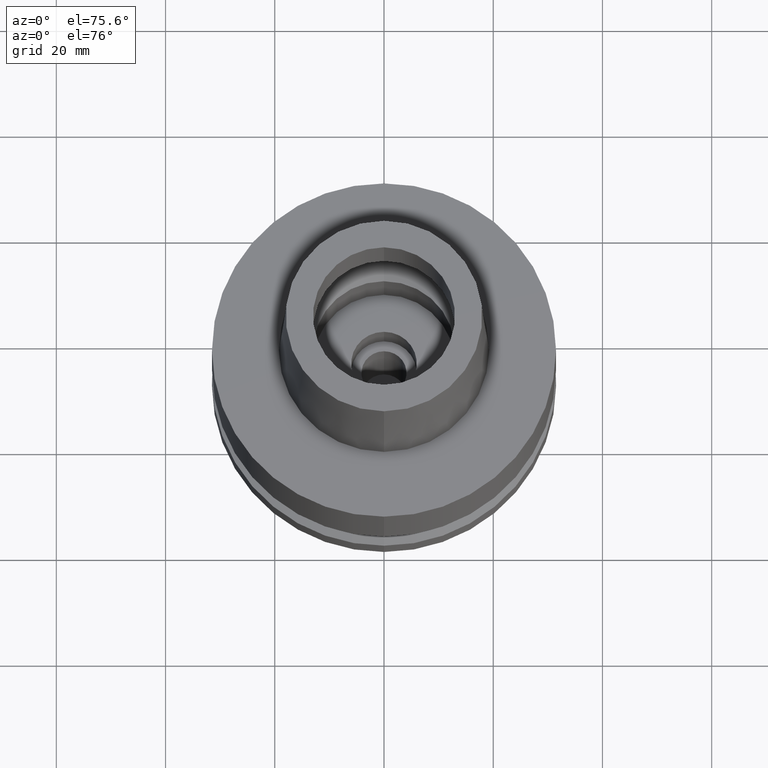
[diagram: clean part render]
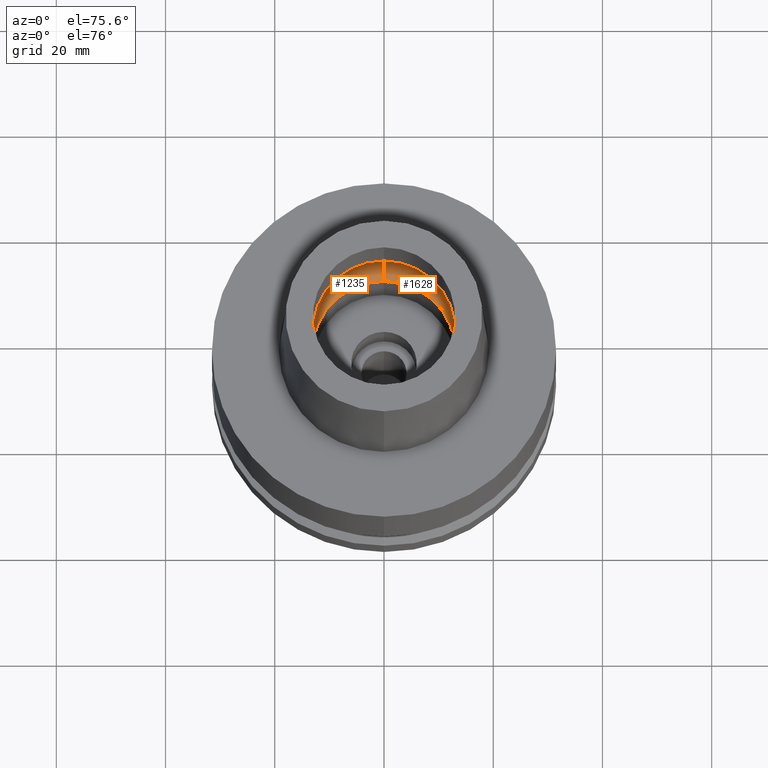
[diagram: same view with one multi-face feature highlighted, each face labeled with its STEP entity id]
A machine part, auxiliary view. The highlighted faces form ONE feature: a constant-radius fillet chain: 2 tangent blend faces with common blend radius 6 mm. The faces share edges in the B-rep.
Their STEP definitions:
[1] entity #1235 (Torus):
#257 = TOROIDAL_SURFACE ( 'NONE', #1821, 10.00000000000000000, 6.000000000000000000 ) ;
#276 = CARTESIAN_POINT ( 'NONE',  ( 0.0000000000000000000, 10.00000000000000000, 5.245999999999999552 ) ) ;
#456 = EDGE_CURVE ( 'NONE', #870, #1443, #1598, .T. ) ;
#486 = CIRCLE ( 'NONE', #2052, 6.000000000000000000 ) ;
#521 = CARTESIAN_POINT ( 'NONE',  ( 0.0000000000000000000, 13.00000000000000000, 0.04984757729338000487 ) ) ;
#707 = DIRECTION ( 'NONE',  ( 0.0000000000000000000, 0.5000000000000169864, -0.8660254037844289376 ) ) ;
#767 = DIRECTION ( 'NONE',  ( 0.0000000000000000000, 1.000000000000000000, 0.0000000000000000000 ) ) ;
#816 = DIRECTION ( 'NONE',  ( 0.0000000000000000000, 0.0000000000000000000, -1.000000000000000000 ) ) ;
#824 = DIRECTION ( 'NONE',  ( 0.0000000000000000000, 1.000000000000000000, 0.0000000000000000000 ) ) ;
#870 = VERTEX_POINT ( 'NONE', #2308 ) ;
#918 = VERTEX_POINT ( 'NONE', #521 ) ;
#975 = CARTESIAN_POINT ( 'NONE',  ( 0.0000000000000000000, 0.0000000000000000000, 5.245999999999999552 ) ) ;
#1032 = CIRCLE ( 'NONE', #2380, 16.00000000000000000 ) ;
#1038 = CARTESIAN_POINT ( 'NONE',  ( 0.0000000000000000000, 0.0000000000000000000, 5.245999999999999552 ) ) ;
#1062 = EDGE_CURVE ( 'NONE', #918, #2779, #486, .T. ) ;
#1235 = ADVANCED_FACE ( 'NONE', ( #1814 ), #257, .F. ) ;
#1373 = CARTESIAN_POINT ( 'NONE',  ( 0.0000000000000000000, 0.0000000000000000000, 0.04984757729338000487 ) ) ;
#1443 = VERTEX_POINT ( 'NONE', #2141 ) ;
#1461 = AXIS2_PLACEMENT_3D ( 'NONE', #2004, #2700, #2230 ) ;
#1582 = CARTESIAN_POINT ( 'NONE',  ( 0.0000000000000000000, 16.00000000000000000, 5.245999999999999552 ) ) ;
#1587 = DIRECTION ( 'NONE',  ( 0.0000000000000000000, 0.0000000000000000000, 1.000000000000000000 ) ) ;
#1598 = CIRCLE ( 'NONE', #1461, 6.000000000000000000 ) ;
#1609 = DIRECTION ( 'NONE',  ( 0.0000000000000000000, 0.0000000000000000000, 1.000000000000000000 ) ) ;
#1655 = DIRECTION ( 'NONE',  ( 0.0000000000000000000, -1.000000000000000000, 0.0000000000000000000 ) ) ;
#1814 = FACE_OUTER_BOUND ( 'NONE', #2091, .T. ) ;
#1821 = AXIS2_PLACEMENT_3D ( 'NONE', #975, #1609, #767 ) ;
#1901 = ORIENTED_EDGE ( 'NONE', *, *, #1062, .T. ) ;
#1985 = EDGE_CURVE ( 'NONE', #1443, #2779, #1032, .T. ) ;
#1996 = ORIENTED_EDGE ( 'NONE', *, *, #1985, .F. ) ;
#2004 = CARTESIAN_POINT ( 'NONE',  ( 0.0000000000000000000, -10.00000000000000000, 5.245999999999999552 ) ) ;
#2052 = AXIS2_PLACEMENT_3D ( 'NONE', #276, #2219, #707 ) ;
#2091 = EDGE_LOOP ( 'NONE', ( #1996, #2717, #2169, #1901 ) ) ;
#2141 = CARTESIAN_POINT ( 'NONE',  ( 0.0000000000000000000, -16.00000000000000000, 5.245999999999999552 ) ) ;
#2169 = ORIENTED_EDGE ( 'NONE', *, *, #2312, .F. ) ;
#2219 = DIRECTION ( 'NONE',  ( 1.000000000000000000, 0.0000000000000000000, 0.0000000000000000000 ) ) ;
#2230 = DIRECTION ( 'NONE',  ( 0.0000000000000000000, -0.5000000000000169864, -0.8660254037844289376 ) ) ;
#2289 = AXIS2_PLACEMENT_3D ( 'NONE', #1373, #1587, #824 ) ;
#2308 = CARTESIAN_POINT ( 'NONE',  ( 0.0000000000000000000, -13.00000000000000000, 0.04984757729338000487 ) ) ;
#2312 = EDGE_CURVE ( 'NONE', #918, #870, #2698, .T. ) ;
#2380 = AXIS2_PLACEMENT_3D ( 'NONE', #1038, #816, #1655 ) ;
#2698 = CIRCLE ( 'NONE', #2289, 13.00000000000000000 ) ;
#2700 = DIRECTION ( 'NONE',  ( -1.000000000000000000, 0.0000000000000000000, 0.0000000000000000000 ) ) ;
#2717 = ORIENTED_EDGE ( 'NONE', *, *, #456, .F. ) ;
#2779 = VERTEX_POINT ( 'NONE', #1582 ) ;
[2] entity #1628 (Torus):
#211 = CIRCLE ( 'NONE', #1866, 16.00000000000000000 ) ;
#276 = CARTESIAN_POINT ( 'NONE',  ( 0.0000000000000000000, 10.00000000000000000, 5.245999999999999552 ) ) ;
#283 = EDGE_CURVE ( 'NONE', #2779, #1443, #211, .T. ) ;
#456 = EDGE_CURVE ( 'NONE', #870, #1443, #1598, .T. ) ;
#486 = CIRCLE ( 'NONE', #2052, 6.000000000000000000 ) ;
#495 = ORIENTED_EDGE ( 'NONE', *, *, #283, .F. ) ;
#521 = CARTESIAN_POINT ( 'NONE',  ( 0.0000000000000000000, 13.00000000000000000, 0.04984757729338000487 ) ) ;
#619 = EDGE_LOOP ( 'NONE', ( #663, #1061, #495, #658 ) ) ;
#658 = ORIENTED_EDGE ( 'NONE', *, *, #1062, .F. ) ;
#663 = ORIENTED_EDGE ( 'NONE', *, *, #2556, .F. ) ;
#699 = DIRECTION ( 'NONE',  ( 0.0000000000000000000, 1.000000000000000000, 0.0000000000000000000 ) ) ;
#707 = DIRECTION ( 'NONE',  ( 0.0000000000000000000, 0.5000000000000169864, -0.8660254037844289376 ) ) ;
#870 = VERTEX_POINT ( 'NONE', #2308 ) ;
#918 = VERTEX_POINT ( 'NONE', #521 ) ;
#1061 = ORIENTED_EDGE ( 'NONE', *, *, #456, .T. ) ;
#1062 = EDGE_CURVE ( 'NONE', #918, #2779, #486, .T. ) ;
#1079 = CARTESIAN_POINT ( 'NONE',  ( 0.0000000000000000000, 0.0000000000000000000, 5.245999999999999552 ) ) ;
#1109 = CARTESIAN_POINT ( 'NONE',  ( 0.0000000000000000000, 0.0000000000000000000, 5.245999999999999552 ) ) ;
#1158 = DIRECTION ( 'NONE',  ( 0.0000000000000000000, 0.0000000000000000000, 1.000000000000000000 ) ) ;
#1308 = AXIS2_PLACEMENT_3D ( 'NONE', #2609, #2120, #1468 ) ;
#1443 = VERTEX_POINT ( 'NONE', #2141 ) ;
#1461 = AXIS2_PLACEMENT_3D ( 'NONE', #2004, #2700, #2230 ) ;
#1468 = DIRECTION ( 'NONE',  ( 0.0000000000000000000, -1.000000000000000000, 0.0000000000000000000 ) ) ;
#1512 = AXIS2_PLACEMENT_3D ( 'NONE', #1109, #1158, #2002 ) ;
#1582 = CARTESIAN_POINT ( 'NONE',  ( 0.0000000000000000000, 16.00000000000000000, 5.245999999999999552 ) ) ;
#1598 = CIRCLE ( 'NONE', #1461, 6.000000000000000000 ) ;
#1628 = ADVANCED_FACE ( 'NONE', ( #2170 ), #2737, .F. ) ;
#1866 = AXIS2_PLACEMENT_3D ( 'NONE', #1079, #1969, #699 ) ;
#1924 = CIRCLE ( 'NONE', #1308, 13.00000000000000000 ) ;
#1969 = DIRECTION ( 'NONE',  ( 0.0000000000000000000, 0.0000000000000000000, -1.000000000000000000 ) ) ;
#2002 = DIRECTION ( 'NONE',  ( 0.0000000000000000000, 1.000000000000000000, 0.0000000000000000000 ) ) ;
#2004 = CARTESIAN_POINT ( 'NONE',  ( 0.0000000000000000000, -10.00000000000000000, 5.245999999999999552 ) ) ;
#2052 = AXIS2_PLACEMENT_3D ( 'NONE', #276, #2219, #707 ) ;
#2120 = DIRECTION ( 'NONE',  ( 0.0000000000000000000, 0.0000000000000000000, 1.000000000000000000 ) ) ;
#2141 = CARTESIAN_POINT ( 'NONE',  ( 0.0000000000000000000, -16.00000000000000000, 5.245999999999999552 ) ) ;
#2170 = FACE_OUTER_BOUND ( 'NONE', #619, .T. ) ;
#2219 = DIRECTION ( 'NONE',  ( 1.000000000000000000, 0.0000000000000000000, 0.0000000000000000000 ) ) ;
#2230 = DIRECTION ( 'NONE',  ( 0.0000000000000000000, -0.5000000000000169864, -0.8660254037844289376 ) ) ;
#2308 = CARTESIAN_POINT ( 'NONE',  ( 0.0000000000000000000, -13.00000000000000000, 0.04984757729338000487 ) ) ;
#2556 = EDGE_CURVE ( 'NONE', #870, #918, #1924, .T. ) ;
#2609 = CARTESIAN_POINT ( 'NONE',  ( 0.0000000000000000000, 0.0000000000000000000, 0.04984757729338000487 ) ) ;
#2700 = DIRECTION ( 'NONE',  ( -1.000000000000000000, 0.0000000000000000000, 0.0000000000000000000 ) ) ;
#2737 = TOROIDAL_SURFACE ( 'NONE', #1512, 10.00000000000000000, 6.000000000000000000 ) ;
#2779 = VERTEX_POINT ( 'NONE', #1582 ) ;